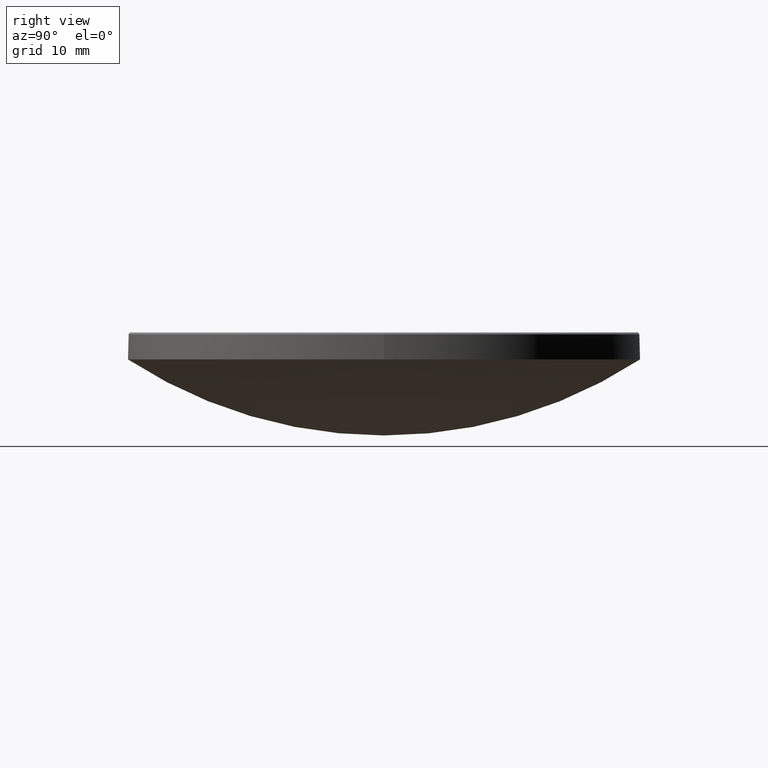
[diagram: clean part render]
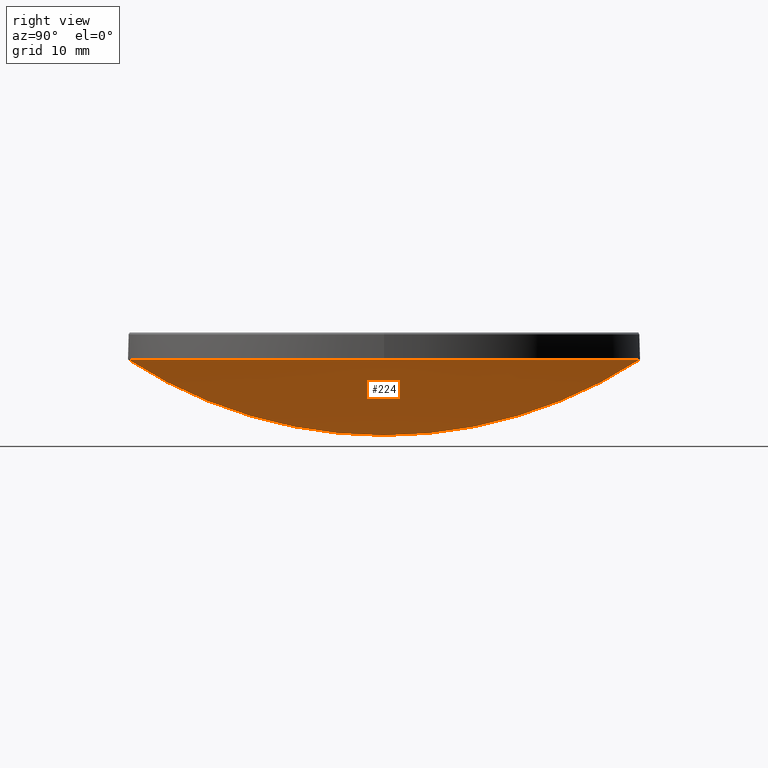
[diagram: same view with one face highlighted and labeled with its STEP entity id]
A machine part, right view. The second image highlights one B-rep face of the part: STEP entity #224.
In plain terms, the highlighted spherical surface has radius 46.53 mm.
Its self-contained STEP definition (entity closure, byte-faithful):
#11 = CARTESIAN_POINT ( 'NONE',  ( 0.000000000000000000, 0.000000000000000000, 53.98564992404256913 ) ) ;
#13 = ORIENTED_EDGE ( 'NONE', *, *, #25, .F. ) ;
#16 = CIRCLE ( 'NONE', #257, 25.39999999999999503 ) ;
#25 = EDGE_CURVE ( 'NONE', #208, #144, #16, .T. ) ;
#30 = AXIS2_PLACEMENT_3D ( 'NONE', #252, #254, #59 ) ;
#32 = ORIENTED_EDGE ( 'NONE', *, *, #210, .F. ) ;
#34 = VERTEX_POINT ( 'NONE', #236 ) ;
#40 = CARTESIAN_POINT ( 'NONE',  ( 25.39999999999999503, 3.110602869834276471E-15, 15.00000000000000000 ) ) ;
#47 = CIRCLE ( 'NONE', #156, 25.39999999999999503 ) ;
#57 = DIRECTION ( 'NONE',  ( -1.000000000000000000, 1.224646799147353207E-16, 0.000000000000000000 ) ) ;
#59 = DIRECTION ( 'NONE',  ( 0.000000000000000000, 1.000000000000000000, 0.000000000000000000 ) ) ;
#71 = CIRCLE ( 'NONE', #278, 46.53000000000000114 ) ;
#77 = EDGE_CURVE ( 'NONE', #83, #144, #71, .T. ) ;
#83 = VERTEX_POINT ( 'NONE', #109 ) ;
#91 = DIRECTION ( 'NONE',  ( -0.000000000000000000, -0.000000000000000000, 1.000000000000000000 ) ) ;
#96 = CARTESIAN_POINT ( 'NONE',  ( 0.000000000000000000, 25.39999999999999858, 15.00000000000000000 ) ) ;
#102 = ORIENTED_EDGE ( 'NONE', *, *, #244, .F. ) ;
#103 = SPHERICAL_SURFACE ( 'NONE', #30, 46.53000000000000114 ) ;
#109 = CARTESIAN_POINT ( 'NONE',  ( 0.000000000000000000, 2.849140778216317103E-15, 7.455649924042566212 ) ) ;
#119 = EDGE_LOOP ( 'NONE', ( #102, #203, #13, #32 ) ) ;
#120 = FACE_OUTER_BOUND ( 'NONE', #119, .T. ) ;
#126 = CARTESIAN_POINT ( 'NONE',  ( 0.000000000000000000, 0.000000000000000000, 15.00000000000000000 ) ) ;
#141 = DIRECTION ( 'NONE',  ( -1.224646799147353207E-16, -1.000000000000000000, 0.000000000000000000 ) ) ;
#144 = VERTEX_POINT ( 'NONE', #96 ) ;
#148 = DIRECTION ( 'NONE',  ( 1.000000000000000000, -0.000000000000000000, 0.000000000000000000 ) ) ;
#156 = AXIS2_PLACEMENT_3D ( 'NONE', #179, #248, #228 ) ;
#164 = AXIS2_PLACEMENT_3D ( 'NONE', #11, #57, #141 ) ;
#169 = DIRECTION ( 'NONE',  ( 1.000000000000000000, 0.000000000000000000, 0.000000000000000000 ) ) ;
#179 = CARTESIAN_POINT ( 'NONE',  ( 0.000000000000000000, 0.000000000000000000, 15.00000000000000000 ) ) ;
#191 = CIRCLE ( 'NONE', #164, 46.53000000000000114 ) ;
#203 = ORIENTED_EDGE ( 'NONE', *, *, #77, .T. ) ;
#208 = VERTEX_POINT ( 'NONE', #40 ) ;
#210 = EDGE_CURVE ( 'NONE', #34, #208, #47, .T. ) ;
#219 = DIRECTION ( 'NONE',  ( 0.000000000000000000, 0.000000000000000000, -1.000000000000000000 ) ) ;
#224 = ADVANCED_FACE ( 'NONE', ( #120 ), #103, .T. ) ;
#228 = DIRECTION ( 'NONE',  ( 1.000000000000000000, 0.000000000000000000, 0.000000000000000000 ) ) ;
#236 = CARTESIAN_POINT ( 'NONE',  ( -3.110602869834276471E-15, -25.39999999999999858, 15.00000000000000000 ) ) ;
#242 = CARTESIAN_POINT ( 'NONE',  ( 0.000000000000000000, 0.000000000000000000, 53.98564992404256913 ) ) ;
#244 = EDGE_CURVE ( 'NONE', #83, #34, #191, .T. ) ;
#248 = DIRECTION ( 'NONE',  ( -0.000000000000000000, -0.000000000000000000, 1.000000000000000000 ) ) ;
#252 = CARTESIAN_POINT ( 'NONE',  ( 0.000000000000000000, 0.000000000000000000, 53.98564992404256913 ) ) ;
#254 = DIRECTION ( 'NONE',  ( -1.000000000000000000, 0.000000000000000000, 0.000000000000000000 ) ) ;
#257 = AXIS2_PLACEMENT_3D ( 'NONE', #126, #91, #169 ) ;
#278 = AXIS2_PLACEMENT_3D ( 'NONE', #242, #148, #219 ) ;